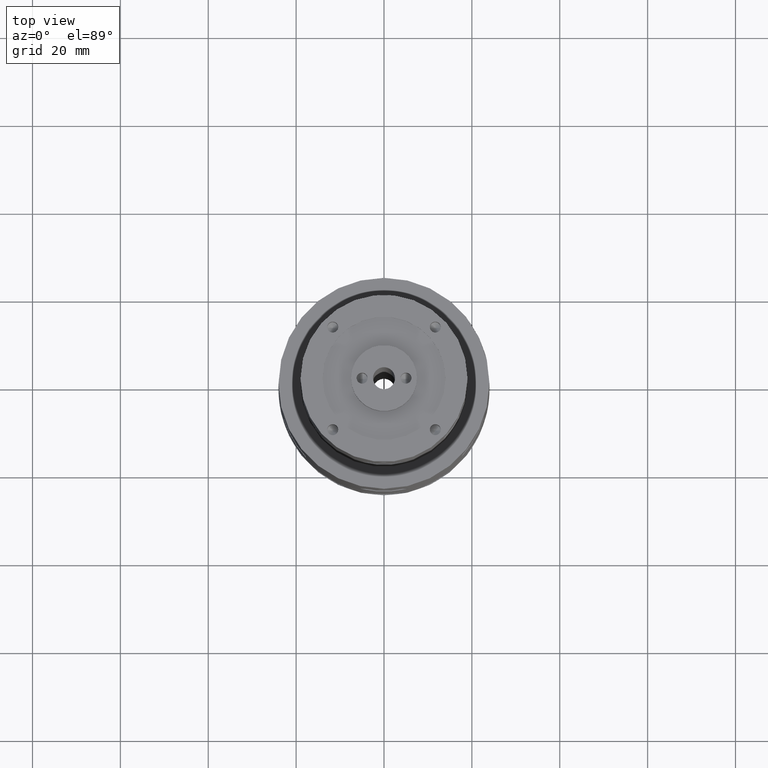
[diagram: clean part render]
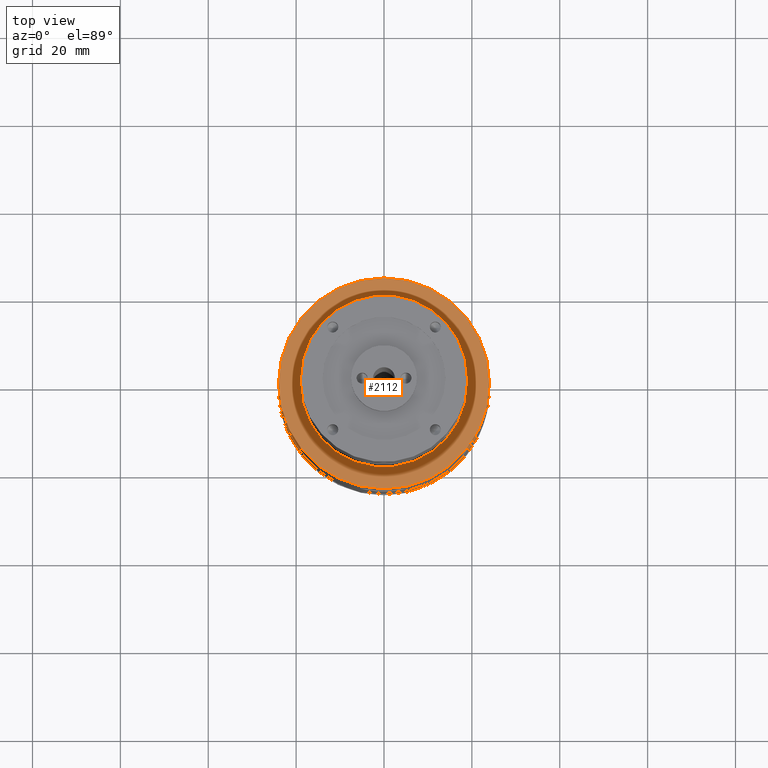
[diagram: same view with one face highlighted and labeled with its STEP entity id]
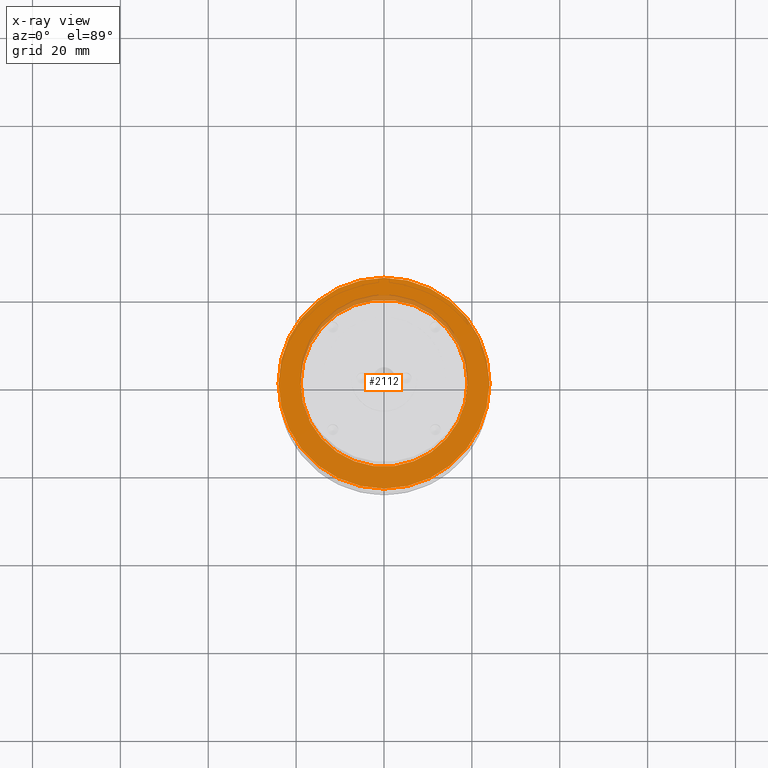
[diagram: x-ray of the same camera — body ghosted, the highlighted face saturated]
A machine part, top view. The second image highlights one B-rep face of the part: STEP entity #2112.
The next image is the same camera in x-ray: the body ghosted, the highlighted face saturated — about 6% of this face is hidden behind the body in this view.
In plain terms, the highlighted planar face has unit normal (0, 0, 1).
Its self-contained STEP definition (entity closure, byte-faithful):
#46 = EDGE_CURVE ( 'NONE', #323, #9415, #9373, .T. ) ;
#103 = DIRECTION ( 'NONE',  ( 0.0000000000000000000, 0.0000000000000000000, 1.000000000000000000 ) ) ;
#238 = DIRECTION ( 'NONE',  ( 0.0000000000000000000, 0.0000000000000000000, 1.000000000000000000 ) ) ;
#323 = VERTEX_POINT ( 'NONE', #6990 ) ;
#327 = DIRECTION ( 'NONE',  ( 0.0000000000000000000, 0.0000000000000000000, 1.000000000000000000 ) ) ;
#842 = FACE_BOUND ( 'NONE', #3681, .T. ) ;
#2112 = ADVANCED_FACE ( 'NONE', ( #4981, #842 ), #5534, .T. ) ;
#2125 = ORIENTED_EDGE ( 'NONE', *, *, #5326, .T. ) ;
#2208 = AXIS2_PLACEMENT_3D ( 'NONE', #4766, #103, #5568 ) ;
#2639 = AXIS2_PLACEMENT_3D ( 'NONE', #4988, #327, #5797 ) ;
#3020 = CARTESIAN_POINT ( 'NONE',  ( 0.0000000000000000000, 0.0000000000000000000, 85.00000000000000000 ) ) ;
#3082 = CARTESIAN_POINT ( 'NONE',  ( 24.00000000000000400, 2.939152317953648300E-015, 85.00000000000000000 ) ) ;
#3346 = DIRECTION ( 'NONE',  ( 0.0000000000000000000, 0.0000000000000000000, 1.000000000000000000 ) ) ;
#3514 = VERTEX_POINT ( 'NONE', #5948 ) ;
#3681 = EDGE_LOOP ( 'NONE', ( #8486, #7188 ) ) ;
#3822 = DIRECTION ( 'NONE',  ( 1.000000000000000000, 0.0000000000000000000, 0.0000000000000000000 ) ) ;
#4534 = EDGE_CURVE ( 'NONE', #4901, #3514, #4683, .T. ) ;
#4683 = CIRCLE ( 'NONE', #6038, 19.00000000000000000 ) ;
#4766 = CARTESIAN_POINT ( 'NONE',  ( 0.0000000000000000000, 0.0000000000000000000, 85.00000000000000000 ) ) ;
#4786 = CIRCLE ( 'NONE', #8086, 24.00000000000000400 ) ;
#4898 = DIRECTION ( 'NONE',  ( 1.000000000000000000, 0.0000000000000000000, 0.0000000000000000000 ) ) ;
#4901 = VERTEX_POINT ( 'NONE', #6970 ) ;
#4981 = FACE_OUTER_BOUND ( 'NONE', #6111, .T. ) ;
#4988 = CARTESIAN_POINT ( 'NONE',  ( 0.0000000000000000000, 0.0000000000000000000, 85.00000000000000000 ) ) ;
#5268 = AXIS2_PLACEMENT_3D ( 'NONE', #5704, #238, #4898 ) ;
#5326 = EDGE_CURVE ( 'NONE', #9415, #323, #4786, .T. ) ;
#5534 = PLANE ( 'NONE',  #2208 ) ;
#5568 = DIRECTION ( 'NONE',  ( 1.000000000000000000, 0.0000000000000000000, -0.0000000000000000000 ) ) ;
#5704 = CARTESIAN_POINT ( 'NONE',  ( 0.0000000000000000000, 0.0000000000000000000, 85.00000000000000000 ) ) ;
#5797 = DIRECTION ( 'NONE',  ( 1.000000000000000000, 0.0000000000000000000, 0.0000000000000000000 ) ) ;
#5948 = CARTESIAN_POINT ( 'NONE',  ( 19.00000000000000000, 2.326828918379971000E-015, 85.00000000000000000 ) ) ;
#6038 = AXIS2_PLACEMENT_3D ( 'NONE', #8051, #3346, #8839 ) ;
#6111 = EDGE_LOOP ( 'NONE', ( #10008, #2125 ) ) ;
#6970 = CARTESIAN_POINT ( 'NONE',  ( -19.00000000000000000, 0.0000000000000000000, 85.00000000000000000 ) ) ;
#6990 = CARTESIAN_POINT ( 'NONE',  ( -24.00000000000000400, 0.0000000000000000000, 85.00000000000000000 ) ) ;
#7188 = ORIENTED_EDGE ( 'NONE', *, *, #9745, .F. ) ;
#8051 = CARTESIAN_POINT ( 'NONE',  ( 0.0000000000000000000, 0.0000000000000000000, 85.00000000000000000 ) ) ;
#8086 = AXIS2_PLACEMENT_3D ( 'NONE', #3020, #8519, #3822 ) ;
#8442 = CIRCLE ( 'NONE', #2639, 19.00000000000000000 ) ;
#8486 = ORIENTED_EDGE ( 'NONE', *, *, #4534, .F. ) ;
#8519 = DIRECTION ( 'NONE',  ( 0.0000000000000000000, 0.0000000000000000000, 1.000000000000000000 ) ) ;
#8839 = DIRECTION ( 'NONE',  ( 1.000000000000000000, 0.0000000000000000000, 0.0000000000000000000 ) ) ;
#9373 = CIRCLE ( 'NONE', #5268, 24.00000000000000400 ) ;
#9415 = VERTEX_POINT ( 'NONE', #3082 ) ;
#9745 = EDGE_CURVE ( 'NONE', #3514, #4901, #8442, .T. ) ;
#10008 = ORIENTED_EDGE ( 'NONE', *, *, #46, .T. ) ;